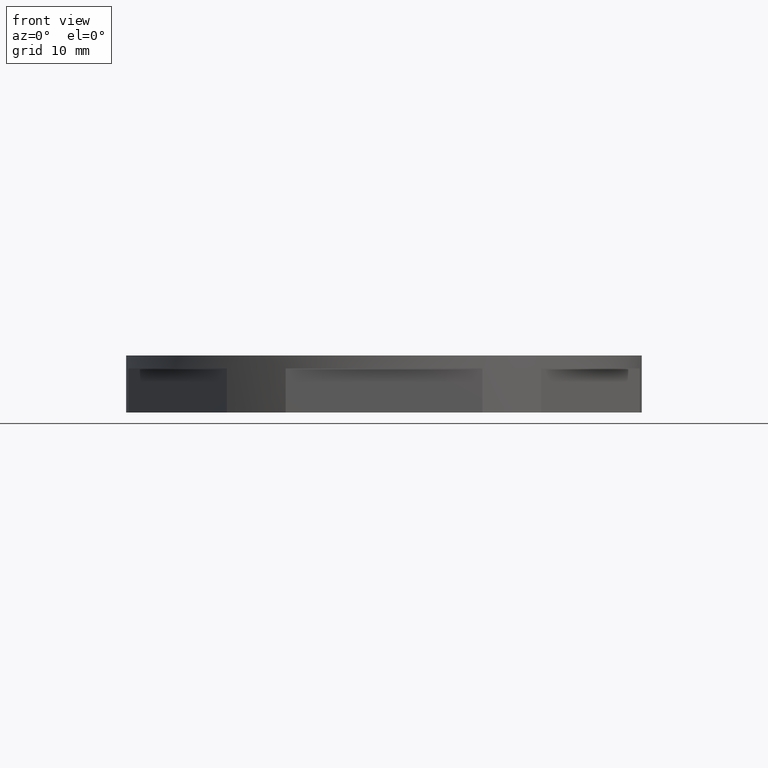
[diagram: clean part render]
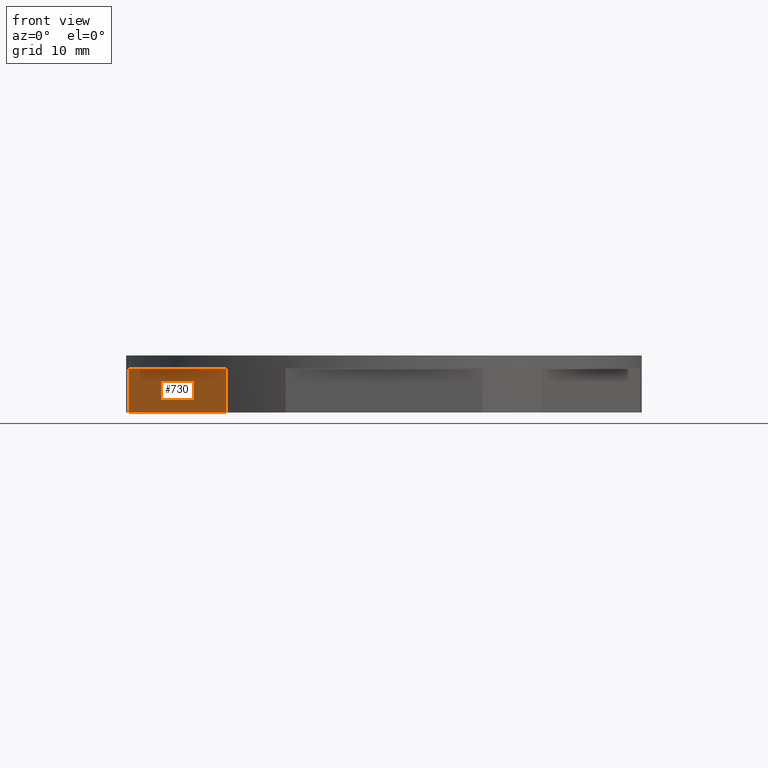
[diagram: same view with one face highlighted and labeled with its STEP entity id]
A machine part, front view. The second image highlights one B-rep face of the part: STEP entity #730.
In plain terms, the highlighted planar face has unit normal (0.866, 0.5, -0).
Its self-contained STEP definition (entity closure, byte-faithful):
#61 = EDGE_LOOP ( 'NONE', ( #204, #235, #253, #234 ) ) ;
#204 = ORIENTED_EDGE ( 'NONE', *, *, #691, .F. ) ;
#234 = ORIENTED_EDGE ( 'NONE', *, *, #601, .F. ) ;
#235 = ORIENTED_EDGE ( 'NONE', *, *, #656, .T. ) ;
#253 = ORIENTED_EDGE ( 'NONE', *, *, #668, .F. ) ;
#268 = VERTEX_POINT ( 'NONE', #324 ) ;
#276 = VERTEX_POINT ( 'NONE', #335 ) ;
#282 = VERTEX_POINT ( 'NONE', #338 ) ;
#294 = VERTEX_POINT ( 'NONE', #352 ) ;
#324 = CARTESIAN_POINT ( 'NONE',  ( -20.11397323124834100, -26.16157642139756900, 5.549999999999998900 ) ) ;
#335 = CARTESIAN_POINT ( 'NONE',  ( -32.71357639960245200, -4.338423578602457200, 5.549999999999998900 ) ) ;
#338 = CARTESIAN_POINT ( 'NONE',  ( -32.71357639960245200, -4.338423578602457200, -0.09999999999999939500 ) ) ;
#352 = CARTESIAN_POINT ( 'NONE',  ( -20.11397323124834100, -26.16157642139756900, -0.09999999999999939500 ) ) ;
#450 = DIRECTION ( 'NONE',  ( 0.5000000000000001100, -0.8660254037844386000, 0.0000000000000000000 ) ) ;
#454 = CARTESIAN_POINT ( 'NONE',  ( -35.07402885326978000, -0.2500000000000139900, 5.549999999999998900 ) ) ;
#460 = LINE ( 'NONE', #454, #969 ) ;
#601 = EDGE_CURVE ( 'NONE', #276, #268, #460, .T. ) ;
#656 = EDGE_CURVE ( 'NONE', #282, #294, #1924, .T. ) ;
#668 = EDGE_CURVE ( 'NONE', #268, #294, #1111, .T. ) ;
#691 = EDGE_CURVE ( 'NONE', #282, #276, #1263, .T. ) ;
#730 = ADVANCED_FACE ( 'NONE', ( #760 ), #769, .F. ) ;
#760 = FACE_OUTER_BOUND ( 'NONE', #61, .T. ) ;
#769 = PLANE ( 'NONE',  #1876 ) ;
#772 = CARTESIAN_POINT ( 'NONE',  ( -35.07402885326978000, -0.2500000000000139900, 7.200000000000001100 ) ) ;
#777 = DIRECTION ( 'NONE',  ( 0.8660254037844386000, 0.5000000000000001100, -0.0000000000000000000 ) ) ;
#824 = DIRECTION ( 'NONE',  ( -0.5000000000000001100, 0.8660254037844386000, 0.0000000000000000000 ) ) ;
#913 = VECTOR ( 'NONE', #1945, 1000.000000000000000 ) ;
#937 = VECTOR ( 'NONE', #1132, 1000.000000000000000 ) ;
#969 = VECTOR ( 'NONE', #450, 1000.000000000000000 ) ;
#1009 = VECTOR ( 'NONE', #1273, 1000.000000000000000 ) ;
#1108 = CARTESIAN_POINT ( 'NONE',  ( -20.11397323124834100, -26.16157642139756900, -22.00000000000001800 ) ) ;
#1111 = LINE ( 'NONE', #1108, #937 ) ;
#1132 = DIRECTION ( 'NONE',  ( -0.0000000000000000000, -0.0000000000000000000, -1.000000000000000000 ) ) ;
#1259 = CARTESIAN_POINT ( 'NONE',  ( -32.71357639960245200, -4.338423578602457200, -22.00000000000001800 ) ) ;
#1263 = LINE ( 'NONE', #1259, #1009 ) ;
#1273 = DIRECTION ( 'NONE',  ( 0.0000000000000000000, 0.0000000000000000000, 1.000000000000000000 ) ) ;
#1876 = AXIS2_PLACEMENT_3D ( 'NONE', #772, #777, #824 ) ;
#1924 = LINE ( 'NONE', #1954, #913 ) ;
#1945 = DIRECTION ( 'NONE',  ( 0.5000000000000001100, -0.8660254037844386000, 0.0000000000000000000 ) ) ;
#1954 = CARTESIAN_POINT ( 'NONE',  ( -35.07402885326978000, -0.2500000000000139900, -0.1000000000000002600 ) ) ;